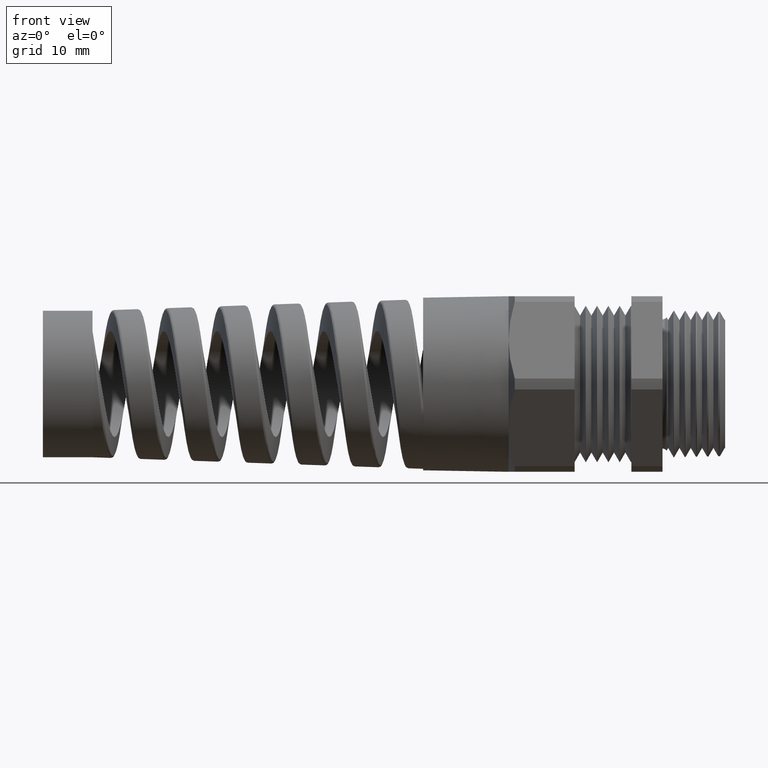
[diagram: clean part render]
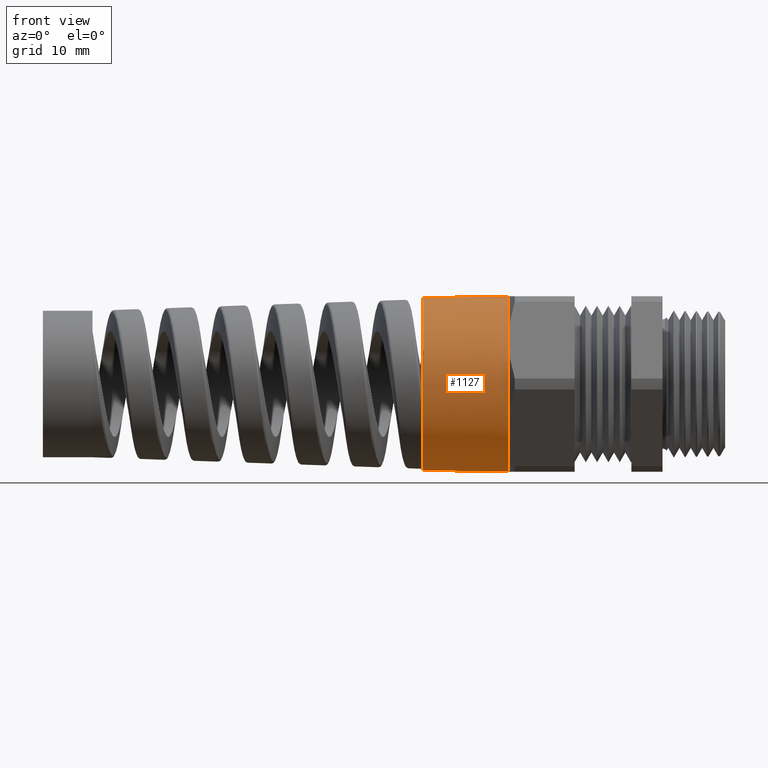
[diagram: same view with one face highlighted and labeled with its STEP entity id]
A machine part, front view. The second image highlights one B-rep face of the part: STEP entity #1127.
In plain terms, the highlighted conical surface has half-angle 1 deg.
Its self-contained STEP definition (entity closure, byte-faithful):
#1101 = VERTEX_POINT ( 'NONE', #1566 ) ;
#1102 = ORIENTED_EDGE ( 'NONE', *, *, #1103, .T. ) ;
#1103 = EDGE_CURVE ( 'NONE', #1131, #1104, #1565, .T. ) ;
#1104 = VERTEX_POINT ( 'NONE', #1561 ) ;
#1105 = ORIENTED_EDGE ( 'NONE', *, *, #1106, .T. ) ;
#1106 = EDGE_CURVE ( 'NONE', #1104, #1107, #1560, .T. ) ;
#1107 = VERTEX_POINT ( 'NONE', #1555 ) ;
#1108 = ORIENTED_EDGE ( 'NONE', *, *, #1109, .T. ) ;
#1109 = EDGE_CURVE ( 'NONE', #1107, #1110, #1621, .T. ) ;
#1110 = VERTEX_POINT ( 'NONE', #1616 ) ;
#1111 = ORIENTED_EDGE ( 'NONE', *, *, #1112, .T. ) ;
#1112 = EDGE_CURVE ( 'NONE', #1110, #1113, #1615, .T. ) ;
#1113 = VERTEX_POINT ( 'NONE', #1610 ) ;
#1114 = ORIENTED_EDGE ( 'NONE', *, *, #1115, .F. ) ;
#1115 = EDGE_CURVE ( 'NONE', #1101, #1113, #1609, .T. ) ;
#1127 = ADVANCED_FACE ( 'NONE', ( #1587 ), #1652, .T. ) ;
#1128 = EDGE_LOOP ( 'NONE', ( #1129, #1102, #1105, #1108, #1111, #1114 ) ) ;
#1129 = ORIENTED_EDGE ( 'NONE', *, *, #1130, .F. ) ;
#1130 = EDGE_CURVE ( 'NONE', #1131, #1101, #1651, .T. ) ;
#1131 = VERTEX_POINT ( 'NONE', #1642 ) ;
#1555 = CARTESIAN_POINT ( 'NONE',  ( -0.7625000000000001800, -0.3767210506462307900, -0.2175000000000002500 ) ) ;
#1556 = DIRECTION ( 'NONE',  ( 0.0000000000000000000, 0.0000000000000000000, 1.000000000000000000 ) ) ;
#1557 = DIRECTION ( 'NONE',  ( -1.000000000000000000, 0.0000000000000000000, 0.0000000000000000000 ) ) ;
#1558 = CARTESIAN_POINT ( 'NONE',  ( -0.7624999999999999600, 0.0000000000000000000, 0.0000000000000000000 ) ) ;
#1559 = AXIS2_PLACEMENT_3D ( 'NONE', #1558, #1557, #1556 ) ;
#1560 = CIRCLE ( 'NONE', #1559, 0.4350000000000000500 ) ;
#1561 = CARTESIAN_POINT ( 'NONE',  ( -0.7624999999999999600, 0.0000000000000000000, -0.4350000000000001600 ) ) ;
#1562 = DIRECTION ( 'NONE',  ( 0.9998476951563912700, -2.137303368083796300E-018, -0.01745240643728355000 ) ) ;
#1563 = VECTOR ( 'NONE', #1562, 39.37007874015748100 ) ;
#1564 = CARTESIAN_POINT ( 'NONE',  ( -0.7624999999999998400, -5.327213576290987000E-017, -0.4350000000000000500 ) ) ;
#1565 = LINE ( 'NONE', #1564, #1563 ) ;
#1566 = CARTESIAN_POINT ( 'NONE',  ( -1.186159999999999900, 0.0000000000000000000, 0.4276049871925114400 ) ) ;
#1587 = FACE_OUTER_BOUND ( 'NONE', #1128, .T. ) ;
#1606 = DIRECTION ( 'NONE',  ( 0.9998476951563912700, 0.0000000000000000000, 0.01745240643728355000 ) ) ;
#1607 = VECTOR ( 'NONE', #1606, 39.37007874015748100 ) ;
#1608 = CARTESIAN_POINT ( 'NONE',  ( -0.7624999999999998400, 0.0000000000000000000, 0.4350000000000000500 ) ) ;
#1609 = LINE ( 'NONE', #1608, #1607 ) ;
#1610 = CARTESIAN_POINT ( 'NONE',  ( -0.7624999999999998400, 0.0000000000000000000, 0.4350000000000000500 ) ) ;
#1611 = DIRECTION ( 'NONE',  ( 0.0000000000000000000, 0.0000000000000000000, 1.000000000000000000 ) ) ;
#1612 = DIRECTION ( 'NONE',  ( -1.000000000000000000, 0.0000000000000000000, 0.0000000000000000000 ) ) ;
#1613 = CARTESIAN_POINT ( 'NONE',  ( -0.7624999999999999600, 0.0000000000000000000, 0.0000000000000000000 ) ) ;
#1614 = AXIS2_PLACEMENT_3D ( 'NONE', #1613, #1612, #1611 ) ;
#1615 = CIRCLE ( 'NONE', #1614, 0.4350000000000000500 ) ;
#1616 = CARTESIAN_POINT ( 'NONE',  ( -0.7624999999999999600, -0.3767210506462307900, 0.2175000000000000300 ) ) ;
#1617 = DIRECTION ( 'NONE',  ( 0.0000000000000000000, 0.0000000000000000000, 1.000000000000000000 ) ) ;
#1618 = DIRECTION ( 'NONE',  ( -1.000000000000000000, 0.0000000000000000000, 0.0000000000000000000 ) ) ;
#1619 = CARTESIAN_POINT ( 'NONE',  ( -0.7624999999999999600, 0.0000000000000000000, 0.0000000000000000000 ) ) ;
#1620 = AXIS2_PLACEMENT_3D ( 'NONE', #1619, #1618, #1617 ) ;
#1621 = CIRCLE ( 'NONE', #1620, 0.4350000000000000500 ) ;
#1642 = CARTESIAN_POINT ( 'NONE',  ( -1.186159999999999900, -5.281932182469265700E-017, -0.4276049871925114400 ) ) ;
#1643 = DIRECTION ( 'NONE',  ( 0.0000000000000000000, 0.0000000000000000000, 1.000000000000000000 ) ) ;
#1644 = DIRECTION ( 'NONE',  ( -1.000000000000000000, 0.0000000000000000000, 0.0000000000000000000 ) ) ;
#1645 = CARTESIAN_POINT ( 'NONE',  ( -1.186159999999999900, 0.0000000000000000000, 0.0000000000000000000 ) ) ;
#1646 = AXIS2_PLACEMENT_3D ( 'NONE', #1645, #1644, #1643 ) ;
#1647 = DIRECTION ( 'NONE',  ( 0.0000000000000000000, 0.0000000000000000000, 1.000000000000000000 ) ) ;
#1648 = DIRECTION ( 'NONE',  ( 1.000000000000000000, 0.0000000000000000000, 0.0000000000000000000 ) ) ;
#1649 = CARTESIAN_POINT ( 'NONE',  ( -0.7624999999999998400, 0.0000000000000000000, 0.0000000000000000000 ) ) ;
#1650 = AXIS2_PLACEMENT_3D ( 'NONE', #1649, #1648, #1647 ) ;
#1651 = CIRCLE ( 'NONE', #1646, 0.4276049871925114400 ) ;
#1652 = CONICAL_SURFACE ( 'NONE', #1650, 0.4350000000000000500, 0.01745329251994333400 ) ;